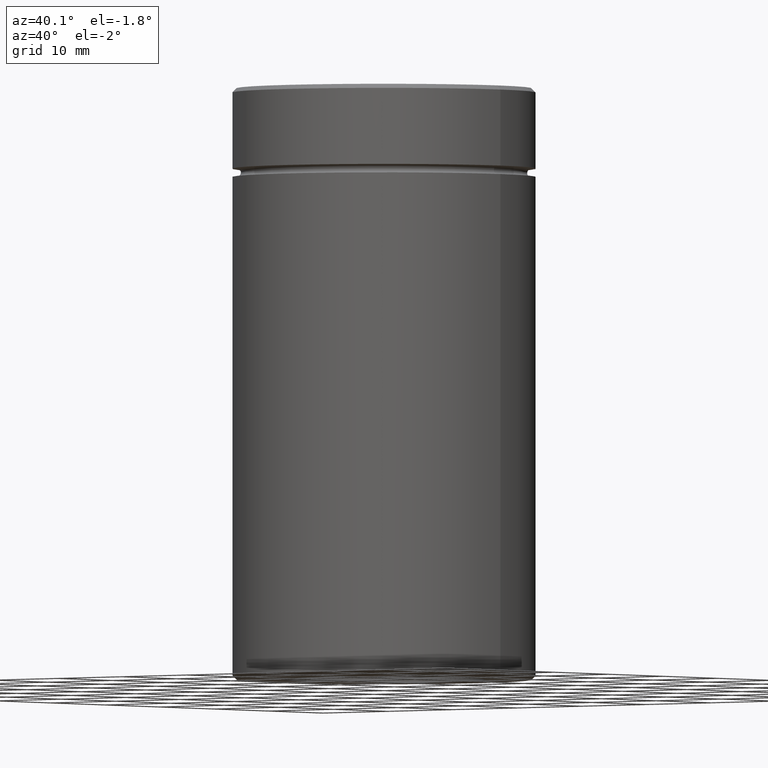
[diagram: clean part render]
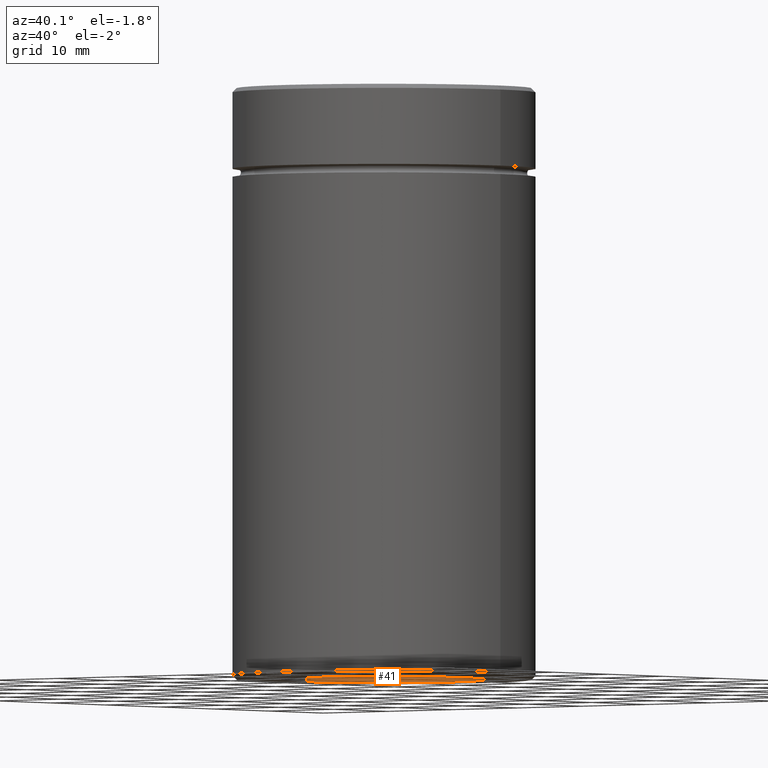
[diagram: same view with one face highlighted and labeled with its STEP entity id]
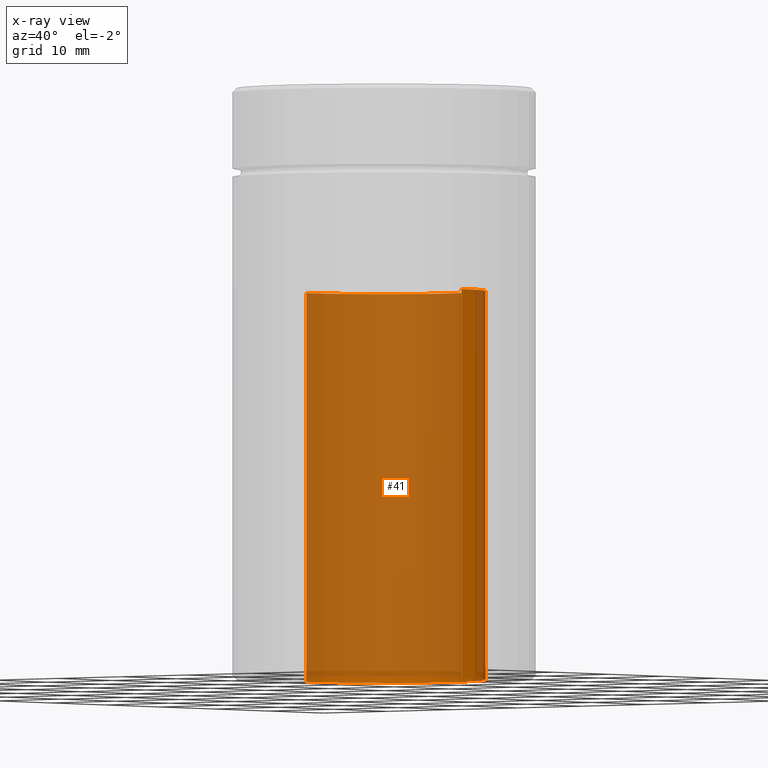
[diagram: x-ray of the same camera — body ghosted, the highlighted face saturated]
A machine part, auxiliary view. The second image highlights one B-rep face of the part: STEP entity #41.
The next image is the same camera in x-ray: the body ghosted, the highlighted face saturated — about 90% of this face is hidden behind the body in this view.
In plain terms, the highlighted cylindrical surface (partial cylindrical patch) has radius 12 mm, axis along (-0, -0, -1).
Its self-contained STEP definition (entity closure, byte-faithful):
#16 = CARTESIAN_POINT ( 'NONE',  ( 12.00000000000000178, 1.469576158976824144E-15, -24.00000000000000711 ) ) ;
#22 = EDGE_CURVE ( 'NONE', #541, #476, #62, .T. ) ;
#23 = CARTESIAN_POINT ( 'NONE',  ( -12.00000000000000178, 0.000000000000000000, -70.00000000000000000 ) ) ;
#29 = EDGE_LOOP ( 'NONE', ( #529, #316, #45, #167 ) ) ;
#38 = DIRECTION ( 'NONE',  ( -0.000000000000000000, -0.000000000000000000, -1.000000000000000000 ) ) ;
#41 = ADVANCED_FACE ( 'NONE', ( #342 ), #459, .F. ) ;
#45 = ORIENTED_EDGE ( 'NONE', *, *, #407, .T. ) ;
#62 = LINE ( 'NONE', #105, #569 ) ;
#63 = CIRCLE ( 'NONE', #473, 12.00000000000000178 ) ;
#76 = DIRECTION ( 'NONE',  ( -1.000000000000000000, 0.000000000000000000, 0.000000000000000000 ) ) ;
#105 = CARTESIAN_POINT ( 'NONE',  ( 12.00000000000000178, 1.469576158976824144E-15, -24.00000000000000711 ) ) ;
#114 = CARTESIAN_POINT ( 'NONE',  ( -12.00000000000000178, 0.000000000000000000, -24.00000000000000711 ) ) ;
#122 = AXIS2_PLACEMENT_3D ( 'NONE', #220, #493, #448 ) ;
#159 = VERTEX_POINT ( 'NONE', #23 ) ;
#165 = EDGE_CURVE ( 'NONE', #159, #476, #63, .T. ) ;
#167 = ORIENTED_EDGE ( 'NONE', *, *, #165, .T. ) ;
#194 = CARTESIAN_POINT ( 'NONE',  ( 0.000000000000000000, 0.000000000000000000, -24.00000000000000711 ) ) ;
#220 = CARTESIAN_POINT ( 'NONE',  ( 0.000000000000000000, 0.000000000000000000, -24.00000000000000711 ) ) ;
#223 = CARTESIAN_POINT ( 'NONE',  ( -12.00000000000000178, 0.000000000000000000, -24.00000000000000711 ) ) ;
#252 = LINE ( 'NONE', #114, #382 ) ;
#257 = VERTEX_POINT ( 'NONE', #223 ) ;
#316 = ORIENTED_EDGE ( 'NONE', *, *, #463, .F. ) ;
#323 = DIRECTION ( 'NONE',  ( 0.000000000000000000, 0.000000000000000000, -1.000000000000000000 ) ) ;
#342 = FACE_OUTER_BOUND ( 'NONE', #29, .T. ) ;
#349 = CARTESIAN_POINT ( 'NONE',  ( 0.000000000000000000, 0.000000000000000000, -70.00000000000000000 ) ) ;
#381 = DIRECTION ( 'NONE',  ( 0.000000000000000000, 0.000000000000000000, -1.000000000000000000 ) ) ;
#382 = VECTOR ( 'NONE', #426, 1000.000000000000000 ) ;
#407 = EDGE_CURVE ( 'NONE', #257, #159, #252, .T. ) ;
#417 = DIRECTION ( 'NONE',  ( -1.000000000000000000, 0.000000000000000000, 0.000000000000000000 ) ) ;
#426 = DIRECTION ( 'NONE',  ( -0.000000000000000000, -0.000000000000000000, -1.000000000000000000 ) ) ;
#448 = DIRECTION ( 'NONE',  ( -1.000000000000000000, 0.000000000000000000, 0.000000000000000000 ) ) ;
#459 = CYLINDRICAL_SURFACE ( 'NONE', #122, 12.00000000000000178 ) ;
#463 = EDGE_CURVE ( 'NONE', #257, #541, #543, .T. ) ;
#473 = AXIS2_PLACEMENT_3D ( 'NONE', #349, #323, #417 ) ;
#476 = VERTEX_POINT ( 'NONE', #526 ) ;
#493 = DIRECTION ( 'NONE',  ( -0.000000000000000000, -0.000000000000000000, -1.000000000000000000 ) ) ;
#526 = CARTESIAN_POINT ( 'NONE',  ( 12.00000000000000178, 1.469576158976824144E-15, -70.00000000000000000 ) ) ;
#528 = AXIS2_PLACEMENT_3D ( 'NONE', #194, #381, #76 ) ;
#529 = ORIENTED_EDGE ( 'NONE', *, *, #22, .F. ) ;
#541 = VERTEX_POINT ( 'NONE', #16 ) ;
#543 = CIRCLE ( 'NONE', #528, 12.00000000000000178 ) ;
#569 = VECTOR ( 'NONE', #38, 1000.000000000000000 ) ;